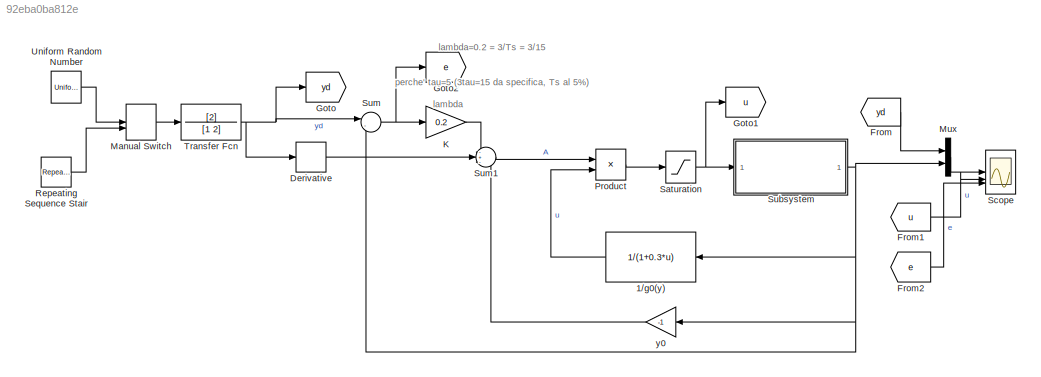
MODEL mdl_92eba0ba812e
KIND model
CONFIG AbsTol = auto
CONFIG EnableMultiTasking = on
CONFIG FixedStep = auto
CONFIG MaxStep = auto
CONFIG MinStep = auto
CONFIG RelTol = 1e-3
CONFIG SampleTimeConstraint = Unconstrained
CONFIG SolverName = ode45
CONFIG StartTime = 0.0
CONFIG StopTime = 100
BLOCK [Fcn] 1//g0(y)
  Expr = 1/(1+0.3*u)
  NameLocation = top
BLOCK [Derivative] Derivative
BLOCK [From] From
  CloseFcn = tagdialog Close
  GotoTag = yd
BLOCK [From] From1
  CloseFcn = tagdialog Close
  GotoTag = u
BLOCK [From] From2
  GotoTag = e
BLOCK [Goto] Goto
  GotoTag = yd
BLOCK [Goto] Goto1
  GotoTag = u
BLOCK [Goto] Goto2
  GotoTag = e
BLOCK [Gain] K
  Gain = 0.2
BLOCK [ManualSwitch] Manual Switch
  CurrentSetting = 0
BLOCK [Mux] Mux
  DisplayOption = bar
  Inputs = 2
BLOCK [Product] Product
  RndMeth = Zero
BLOCK [Reference] Repeating Sequence Stair  REF=simulink/Sources/Repeating
Sequence
Stair
  SourceBlock = simulink/Sources/Repeating\nSequence\nStair
  SourceType = Repeating Sequence Stair
BLOCK [Saturate] Saturation
  LowerLimit = -10
  UpperLimit = 10
BLOCK [Scope] Scope
  ActiveDisplayYMaximum = 117.23881804459833
  ActiveDisplayYMinimum = -13.0265353382887
  DataLoggingDecimateData = on
  DataLoggingDecimation = 1
  DataLoggingSaveFormat = Structure With Time
  Floating = off
  GraphicalSettings = {"AxesScalingProperties":{"AlignXAxis":"Center","AlignYAxis":"Center","AutoScaleXAxisLimits":false,"AxesScaling":"Manual","AxesScalingNumUpdates":10,"ExpandOnly":true,"ScaleAxesLimitsAtStop":false,"XAxisDataRange":100,"YAxisDataRange":80},"DisplayProperties":{"ColorOrder":["auto","auto","auto","auto","auto","auto","auto","auto","auto","auto","auto","auto","auto","auto","auto","auto","auto","auto",...<+2885ch>
  LayoutDimensionsString = [3 1]
  MultipleDisplayCache = [{"MaxYLimMag":117.23881804459833,"MaxYLimReal":117.23881804459833,"MinYLimMag":0,"MinYLimReal":-13.0265353382887,"PlotAsMagnitudePhase":false,"ShowGrid":true,"ShowLegend":false,"Title":"%<SignalLabel>","YLabel":""},{"MaxYLimMag":11.25,"MaxYLimReal":11.25,"MinYLimMag":0,"MinYLimReal":-1.2499999999999998,"PlotAsMagnitudePhase":false,"ShowGrid":true,"ShowLegend":false,"Title":"%<SignalLabel>","YLabe...<+222ch>
  NumInputPorts = 3
  ScopeFrameLocation = window
  TimeSpan = 100
  Visible = on
  WasSavedAsWebScope = on
  WindowPosition = [403.000000,6.000000,962.000000,743.000000,]
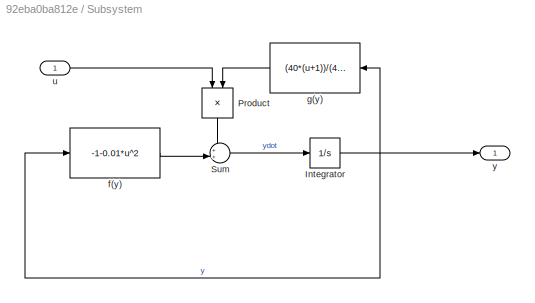
BLOCK [SubSystem] Subsystem
BLOCK [Integrator] Subsystem/Integrator
BLOCK [Product] Subsystem/Product
  NameLocation = left
  RndMeth = Zero
BLOCK [Sum] Subsystem/Sum
  Inputs = ++|
BLOCK [Fcn] Subsystem/f(y)
  Expr = -1-0.01*u^2
BLOCK [Fcn] Subsystem/g(y)
  Expr = (40*(u+1))/(40+u)
  NameLocation = top
BLOCK [Inport] Subsystem/u
BLOCK [Outport] Subsystem/y
BLOCK [Sum] Sum
  Inputs = |-+
BLOCK [Sum] Sum1
  Inputs = -+-
BLOCK [TransferFcn] Transfer Fcn
  Denominator = [1 2]
  Numerator = [2]
BLOCK [UniformRandomNumber] Uniform Random Number
  Maximum = 60
  Minimum = 20
  SampleTime = 10
BLOCK [Gain] y0
  Gain = -1
  NameLocation = top
ANNOTATION (root): lambda
ANNOTATION (root): lambda=0.2 = 3/Ts = 3/15 perche' tau=5 (3tau=15 da specifica, Ts al 5%)
LINE 1//g0(y):1 -> Product:2
LINE Derivative:1 -> Sum1:2
LINE From1:1 -> Scope:2
LINE From2:1 -> Scope:3
LINE From:1 -> Mux:1
LINE K:1 -> Sum1:1
LINE Manual Switch:1 -> Transfer Fcn:1
LINE Mux:1 -> Scope:1
LINE Product:1 -> Saturation:1
LINE Repeating Sequence Stair:1 -> Manual Switch:2
NET Saturation:1 -> Goto1:1, Subsystem:1
NET Subsystem/Integrator:1 -> Subsystem/f(y):1, Subsystem/g(y):1, Subsystem/y:1
LINE Subsystem/Product:1 -> Subsystem/Sum:1
LINE Subsystem/Sum:1 -> Subsystem/Integrator:1
LINE Subsystem/f(y):1 -> Subsystem/Sum:2
LINE Subsystem/g(y):1 -> Subsystem/Product:2
LINE Subsystem/u:1 -> Subsystem/Product:1
NET Subsystem:1 -> 1//g0(y):1, Mux:2, Sum:2, y0:1
LINE Sum1:1 -> Product:1
NET Sum:1 -> Goto2:1, K:1
NET Transfer Fcn:1 -> Derivative:1, Goto:1, Sum:1
LINE Uniform Random Number:1 -> Manual Switch:1
LINE y0:1 -> Sum1:3
note: NET lines group one-source signal fan-out (src -> all destinations, sorted); 1:1 wires keep LINE
